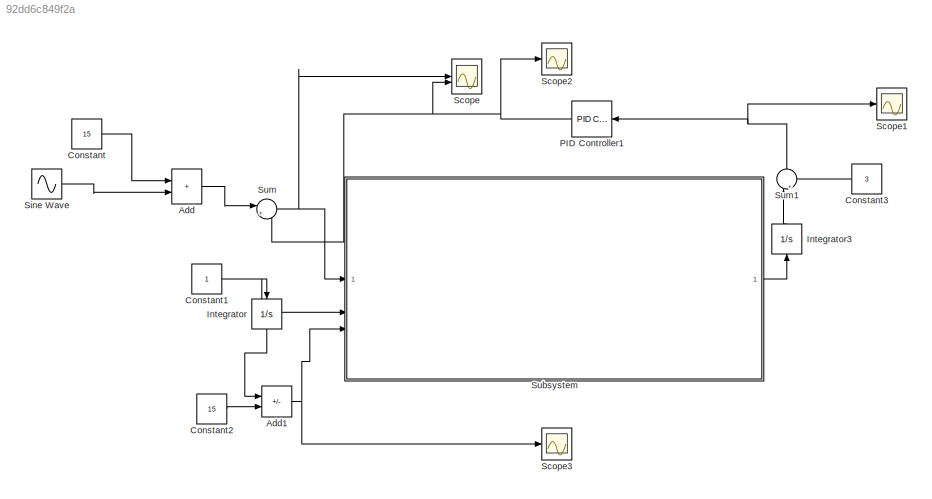
MODEL slx_92dd6c849f2a
KIND model
CONFIG AbsTol = auto
CONFIG EnableMultiTasking = off
CONFIG FixedStep = auto
CONFIG MaxStep = auto
CONFIG MinStep = auto
CONFIG RelTol = 1e-3
CONFIG SampleTimeConstraint = Unconstrained
CONFIG SolverName = VariableStepAuto
CONFIG StartTime = 0.0
CONFIG StopTime = 10
BLOCK [Sum] Add
  IconShape = rectangular
BLOCK [Sum] Add1
  IconShape = rectangular
  Inputs = -+
BLOCK [Constant] Constant
  Value = 15
BLOCK [Constant] Constant1
BLOCK [Constant] Constant2
  Value = 15
BLOCK [Constant] Constant3
  NameLocation = top
  Value = 3
BLOCK [Integrator] Integrator
  NameLocation = left
BLOCK [Integrator] Integrator3
  NameLocation = right
BLOCK [Reference] PID Controller1  REF=slpidlib/PID Controller
  LibrarySourceBlock = simulink/Continuous/PID Controller
  NameLocation = top
  SourceBlock = slpidlib/PID Controller
  SourceType = PID 1dof
BLOCK [Scope] Scope
  Floating = off
  NumInputPorts = 2
  ScopeSpecificationString = Simulink.scopes.TimeScopeBlockCfg('CurrentConfiguration', extmgr.ConfigurationSet(extmgr.Configuration('Core','General UI',true),extmgr.Configuration('Core','Source UI',true),extmgr.Configuration('Sources','WiredSimulink',true),extmgr.Configuration('Visuals','Time Domain',true,'SerializedDisplays',{struct('MinYLimReal','-5.48613','MaxYLimReal','19.949','YLabelReal','','MinYLimMag','0.00000','MaxYL...<+1477ch>
BLOCK [Scope] Scope1
  Floating = off
  NumInputPorts = 1
  ScopeSpecificationString = Simulink.scopes.TimeScopeBlockCfg('CurrentConfiguration', extmgr.ConfigurationSet(extmgr.Configuration('Core','General UI',true),extmgr.Configuration('Core','Source UI',true),extmgr.Configuration('Sources','WiredSimulink',true,'DataLoggingVariableName','ScopeData1'),extmgr.Configuration('Visuals','Time Domain',true,'SerializedDisplays',{struct('MinYLimReal','1.20106','MaxYLimReal','19.19046','YLab...<+1507ch>
BLOCK [Scope] Scope2
  Floating = off
  NumInputPorts = 1
  ScopeSpecificationString = Simulink.scopes.TimeScopeBlockCfg('CurrentConfiguration', extmgr.ConfigurationSet(extmgr.Configuration('Core','General UI',true),extmgr.Configuration('Core','Source UI',true),extmgr.Configuration('Sources','WiredSimulink',true,'DataLoggingVariableName','ScopeData2'),extmgr.Configuration('Visuals','Time Domain',true,'SerializedDisplays',{struct('MinYLimReal','1.97081','MaxYLimReal','19.12045','YLab...<+1555ch>
BLOCK [Scope] Scope3
  Floating = off
  NumInputPorts = 1
  ScopeSpecificationString = Simulink.scopes.TimeScopeBlockCfg('CurrentConfiguration', extmgr.ConfigurationSet(extmgr.Configuration('Core','General UI',true),extmgr.Configuration('Core','Source UI',true),extmgr.Configuration('Sources','WiredSimulink',true,'DataLoggingVariableName','ScopeData1'),extmgr.Configuration('Visuals','Time Domain',true,'SerializedDisplays',{struct('MinYLimReal','3.75','MaxYLimReal','16.25','YLabelReal...<+1485ch>
BLOCK [Sin] Sine Wave
  SampleTime = 0
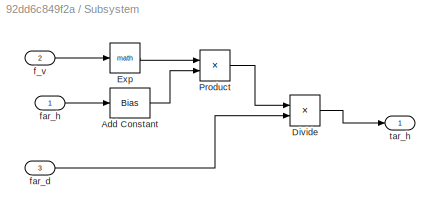
BLOCK [SubSystem] Subsystem
BLOCK [Bias] Subsystem/Add Constant
  Bias = 3
  SaturateOnIntegerOverflow = off
BLOCK [Product] Subsystem/Divide
  Inputs = */
BLOCK [Math] Subsystem/Exp
BLOCK [Product] Subsystem/Product
BLOCK [Inport] Subsystem/f_v
  Port = 2
BLOCK [Inport] Subsystem/far_d
  Port = 3
BLOCK [Inport] Subsystem/far_h
BLOCK [Outport] Subsystem/tar_h
BLOCK [Sum] Sum
  Inputs = |+-
BLOCK [Sum] Sum1
  Inputs = |++
  NameLocation = right
NET Add1:1 -> Scope3:1, Subsystem:3
LINE Add:1 -> Sum:1
NET Constant1:1 -> Integrator:1, Subsystem:2
LINE Constant2:1 -> Add1:2
LINE Constant3:1 -> Sum1:2
LINE Constant:1 -> Add:1
LINE Integrator3:1 -> Sum1:1
LINE Integrator:1 -> Add1:1
NET PID Controller1:1 -> Scope2:1, Scope:2, Sum:2
LINE Sine Wave:1 -> Add:2
LINE Subsystem/Add Constant:1 -> Subsystem/Product:2
LINE Subsystem/Divide:1 -> Subsystem/tar_h:1
LINE Subsystem/Exp:1 -> Subsystem/Product:1
LINE Subsystem/Product:1 -> Subsystem/Divide:1
LINE Subsystem/f_v:1 -> Subsystem/Exp:1
LINE Subsystem/far_d:1 -> Subsystem/Divide:2
LINE Subsystem/far_h:1 -> Subsystem/Add Constant:1
LINE Subsystem:1 -> Integrator3:1
NET Sum1:1 -> PID Controller1:1, Scope1:1
NET Sum:1 -> Scope:1, Subsystem:1
note: NET lines group one-source signal fan-out (src -> all destinations, sorted); 1:1 wires keep LINE
